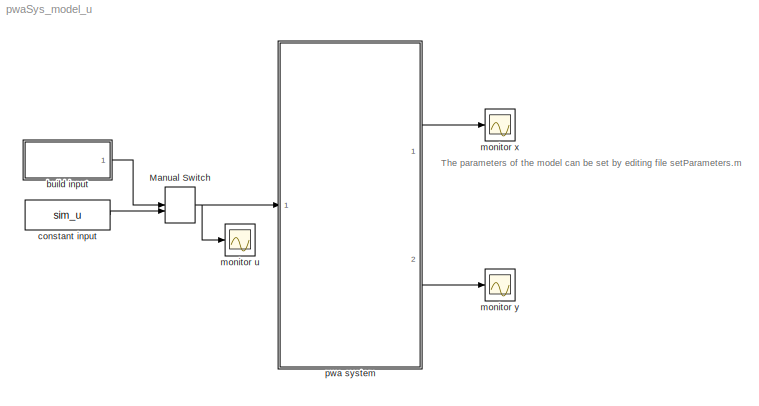
MODEL pwaSys_model_u
KIND model
CONFIG InitFcn = load simulink.mat\nsetParameters
CONFIG StartFcn = load simulink.mat\nsetParameters\nclear res_X res_U res_Y res_P res_D
CONFIG StopFcn = plotScope
BLOCK [ManualSwitch] Manual Switch
  CurrentSetting = 0
  SID = 27
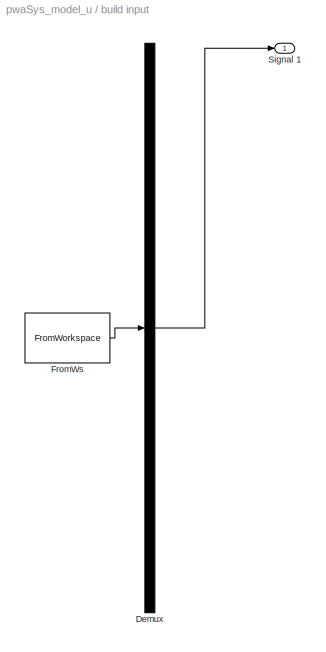
BLOCK [SubSystem] build input
  ClipboardFcn = sigbuilder_block('clipboard');
  CloseFcn = sigbuilder_block('close');
  ContinueFcn = sigbuilder_block('continue');
  CopyFcn = sigbuilder_block('copy');
  DeleteFcn = sigbuilder_block('delete');
  LoadFcn = sigbuilder_block('load');
  MaskHideContents = on
  ModelCloseFcn = sigbuilder_block('modelClose');
  NameChangeFcn = sigbuilder_block('namechange');
  OpenFcn = sigbuilder_block('open',[433.6 120 558.4 400.8 ]);
  PauseFcn = sigbuilder_block('pause');
  Ports = [0, 1]
  PreSaveFcn = sigbuilder_block('preSave');
  RequestExecContextInheritance = off
  SID = 11
  StartFcn = sigbuilder_block('start');
  StopFcn = sigbuilder_block('stop');
  Tag = STV Subsys
  Variant = off
BLOCK [Demux] build input/Demux
  Outputs = 1
  Ports = [1, 1]
  SID = 11:1
  Tag = STV Demux
BLOCK [FromWorkspace] build input/FromWs
  SID = 11:2
  SampleTime = 0
  SigBuilderData = DataTag0
  Tag = STV FromWs
  VariableName = tuvar
  VnvData = DataTag1
  ZeroCross = on
BLOCK [Outport] build input/Signal 1
  IconDisplay = Port number
  SID = 11:3
  Tag = STV Outport
BLOCK [Constant] constant input
  SID = 28
  Value = sim_u
BLOCK [Scope] monitor u
  Ports = [1]
  SID = 23
  ScopeSpecificationString = C++SS(StrPVP('Location','[188, 365, 512, 604]'),StrPVP('Open','off'),MxPVP('AxesTitles',24,'struct(''axes1'',''%<SignalLabel>'')'),MxPVP('ScopeGraphics',28,'struct(''FigureColor'',''[0.5 0.5 0.5]'',''AxesColor'',''[0 0 0]'',''AxesTickColor'',''[1 1 1]'',''LineColors'',''[1 1 0;1 0 1;0 1 1;1 0 0;0 1 0;0 0 1]'',''LineStyles'',''-|-|-|-|-|-'',''LineWidths'',''[0.5 0.5 0.5 0.5 0.5 0.5]'',''MarkerStyle...<+263ch>
BLOCK [Scope] monitor x
  Ports = [1]
  SID = 16
  ScopeSpecificationString = C++SS(StrPVP('Location','[188, 336, 502, 573]'),StrPVP('Open','off'),MxPVP('AxesTitles',24,'struct(''axes1'',''%<SignalLabel>'')'),MxPVP('ScopeGraphics',28,'struct(''FigureColor'',''[0.5 0.5 0.5]'',''AxesColor'',''[0 0 0]'',''AxesTickColor'',''[1 1 1]'',''LineColors'',''[1 1 0;1 0 1;0 1 1;1 0 0;0 1 0;0 0 1]'',''LineStyles'',''-|-|-|-|-|-'',''LineWidths'',''[0.5 0.5 0.5 0.5 0.5 0.5]'',''MarkerStyle...<+263ch>
BLOCK [Scope] monitor y
  Ports = [1]
  SID = 17
  ScopeSpecificationString = C++SS(StrPVP('Location','[188, 365, 502, 602]'),StrPVP('Open','off'),MxPVP('AxesTitles',24,'struct(''axes1'',''%<SignalLabel>'')'),MxPVP('ScopeGraphics',28,'struct(''FigureColor'',''[0.5 0.5 0.5]'',''AxesColor'',''[0 0 0]'',''AxesTickColor'',''[1 1 1]'',''LineColors'',''[1 1 0;1 0 1;0 1 1;1 0 0;0 1 0;0 0 1]'',''LineStyles'',''-|-|-|-|-|-'',''LineWidths'',''[0.5 0.5 0.5 0.5 0.5 0.5]'',''MarkerStyle...<+263ch>
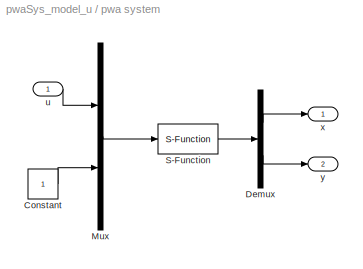
BLOCK [SubSystem] pwa system
  Ports = [1, 2]
  RequestExecContextInheritance = off
  SID = 5
  Variant = off
BLOCK [Constant] pwa system/Constant
  SID = 26
BLOCK [Demux] pwa system/Demux
  DisplayOption = bar
  Outputs = [sim_nx sim_ny]
  Ports = [1, 2]
  SID = 19
BLOCK [Mux] pwa system/Mux
  DisplayOption = bar
  Inputs = 2
  Ports = [2, 1]
  SID = 20
BLOCK [S-Function] pwa system/S-Function
  EnableBusSupport = off
  FunctionName = s_pwaSys_d
  Parameters = A,B,C,D,H,K,sim_x0,Ts
  Ports = [1, 1]
  SFunctionDeploymentMode = off
  SID = 37
BLOCK [Inport] pwa system/u
  IconDisplay = Port number
  SID = 6
BLOCK [Outport] pwa system/x
  IconDisplay = Port number
  SID = 7
BLOCK [Outport] pwa system/y
  IconDisplay = Port number
  Port = 2
  SID = 10
ANNOTATION (root): \n \n
ANNOTATION (root): \n \n The parameters of the model can be set by editing file setParameters.m \n \n You can generate custom signals for system inputs (u), or you can set them \n constant (choose with the orange switches) \n \n The simulation results are also saved in MATLAB workspace as variables \n res_X, res_Y and res_U and automatically plotted
NET Manual Switch:1 -> monitor u:1, pwa system:1
LINE build input/Demux:1 -> build input/Signal 1:1
LINE build input/FromWs:1 -> build input/Demux:1
LINE build input:1 -> Manual Switch:1
LINE constant input:1 -> Manual Switch:2
LINE pwa system/Constant:1 -> pwa system/Mux:2
LINE pwa system/Demux:1 -> pwa system/x:1
LINE pwa system/Demux:2 -> pwa system/y:1
LINE pwa system/Mux:1 -> pwa system/S-Function:1
LINE pwa system/S-Function:1 -> pwa system/Demux:1
LINE pwa system/u:1 -> pwa system/Mux:1
LINE pwa system:1 -> monitor x:1
LINE pwa system:2 -> monitor y:1
note: NET lines group one-source signal fan-out (src -> all destinations, sorted); 1:1 wires keep LINE
